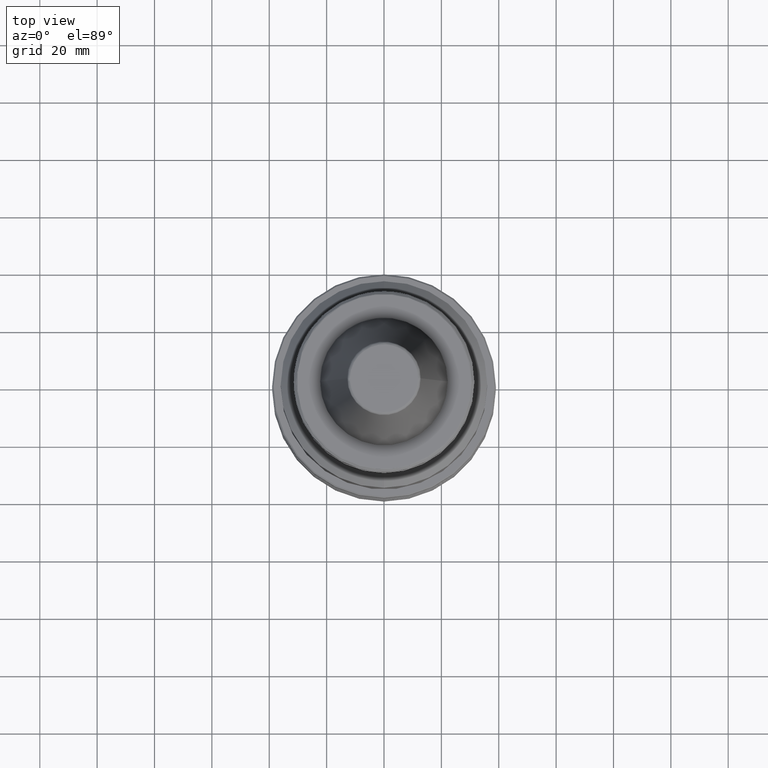
[diagram: clean part render]
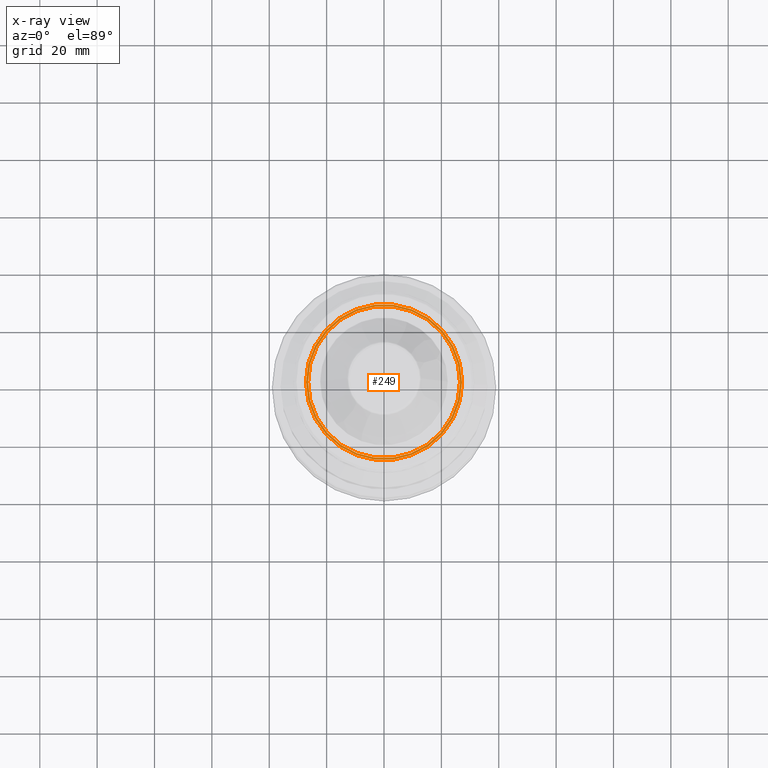
[diagram: x-ray — body ghosted, one internal face saturated and labeled with its STEP entity id]
A machine part, top view, then the same camera in x-ray: the body is ghosted and one INTERNAL B-rep face — a face not visible from any outside direction — is saturated and labeled: STEP entity #249.
In plain terms, the highlighted planar face has unit normal (0, 0, -1).
Its self-contained STEP definition (entity closure, byte-faithful):
#214 = AXIS2_PLACEMENT_3D ( 'NONE', #1846, #1793, #1953 ) ;
#249 = ADVANCED_FACE ( 'NONE', ( #1549, #2908 ), #1960, .T. ) ;
#311 = CARTESIAN_POINT ( 'NONE',  ( -27.19778137879260900, 3.594202504129474100E-015, -14.10000000087449700 ) ) ;
#401 = CARTESIAN_POINT ( 'NONE',  ( -26.50000000000000000, 3.245314017740485800E-015, -14.10000000000000100 ) ) ;
#416 = EDGE_CURVE ( 'NONE', #2725, #678, #2606, .T. ) ;
#467 = ORIENTED_EDGE ( 'NONE', *, *, #1849, .T. ) ;
#678 = VERTEX_POINT ( 'NONE', #1204 ) ;
#797 = CIRCLE ( 'NONE', #1053, 26.50000000000000000 ) ;
#804 = VERTEX_POINT ( 'NONE', #909 ) ;
#909 = CARTESIAN_POINT ( 'NONE',  ( 27.19778137879260900, 0.0000000000000000000, -14.10000000087449700 ) ) ;
#1053 = AXIS2_PLACEMENT_3D ( 'NONE', #2790, #2788, #2786 ) ;
#1067 = EDGE_LOOP ( 'NONE', ( #1435, #1792 ) ) ;
#1161 = AXIS2_PLACEMENT_3D ( 'NONE', #3037, #1839, #1841 ) ;
#1204 = CARTESIAN_POINT ( 'NONE',  ( 26.50000000000000000, 0.0000000000000000000, -14.10000000000000100 ) ) ;
#1265 = AXIS2_PLACEMENT_3D ( 'NONE', #2186, #2185, #2182 ) ;
#1435 = ORIENTED_EDGE ( 'NONE', *, *, #1471, .F. ) ;
#1471 = EDGE_CURVE ( 'NONE', #678, #2725, #797, .T. ) ;
#1504 = EDGE_LOOP ( 'NONE', ( #2388, #467 ) ) ;
#1549 = FACE_BOUND ( 'NONE', #1067, .T. ) ;
#1586 = CIRCLE ( 'NONE', #1265, 27.19778137879260900 ) ;
#1667 = CIRCLE ( 'NONE', #1794, 27.19778137879260900 ) ;
#1792 = ORIENTED_EDGE ( 'NONE', *, *, #416, .F. ) ;
#1793 = DIRECTION ( 'NONE',  ( 0.0000000000000000000, 0.0000000000000000000, -1.000000000000000000 ) ) ;
#1794 = AXIS2_PLACEMENT_3D ( 'NONE', #2463, #2623, #2620 ) ;
#1839 = DIRECTION ( 'NONE',  ( -0.0000000000000000000, -0.0000000000000000000, -1.000000000000000000 ) ) ;
#1841 = DIRECTION ( 'NONE',  ( 1.000000000000000000, 0.0000000000000000000, 0.0000000000000000000 ) ) ;
#1846 = CARTESIAN_POINT ( 'NONE',  ( -8.050000000000000700, -26.26108084499999900, -14.10000000000000000 ) ) ;
#1849 = EDGE_CURVE ( 'NONE', #2757, #804, #1667, .T. ) ;
#1953 = DIRECTION ( 'NONE',  ( -1.000000000000000000, 0.0000000000000000000, -0.0000000000000000000 ) ) ;
#1960 = PLANE ( 'NONE',  #214 ) ;
#2009 = EDGE_CURVE ( 'NONE', #804, #2757, #1586, .T. ) ;
#2182 = DIRECTION ( 'NONE',  ( -1.000000000000000000, 0.0000000000000000000, 0.0000000000000000000 ) ) ;
#2185 = DIRECTION ( 'NONE',  ( -0.0000000000000000000, -0.0000000000000000000, -1.000000000000000000 ) ) ;
#2186 = CARTESIAN_POINT ( 'NONE',  ( 0.0000000000000000000, 0.0000000000000000000, -14.10000000087449700 ) ) ;
#2388 = ORIENTED_EDGE ( 'NONE', *, *, #2009, .T. ) ;
#2463 = CARTESIAN_POINT ( 'NONE',  ( 0.0000000000000000000, 0.0000000000000000000, -14.10000000087449700 ) ) ;
#2606 = CIRCLE ( 'NONE', #1161, 26.50000000000000000 ) ;
#2620 = DIRECTION ( 'NONE',  ( -1.000000000000000000, 0.0000000000000000000, 0.0000000000000000000 ) ) ;
#2623 = DIRECTION ( 'NONE',  ( -0.0000000000000000000, -0.0000000000000000000, -1.000000000000000000 ) ) ;
#2725 = VERTEX_POINT ( 'NONE', #401 ) ;
#2757 = VERTEX_POINT ( 'NONE', #311 ) ;
#2786 = DIRECTION ( 'NONE',  ( 1.000000000000000000, 0.0000000000000000000, 0.0000000000000000000 ) ) ;
#2788 = DIRECTION ( 'NONE',  ( -0.0000000000000000000, -0.0000000000000000000, -1.000000000000000000 ) ) ;
#2790 = CARTESIAN_POINT ( 'NONE',  ( 0.0000000000000000000, 0.0000000000000000000, -14.10000000000000100 ) ) ;
#2908 = FACE_OUTER_BOUND ( 'NONE', #1504, .T. ) ;
#3037 = CARTESIAN_POINT ( 'NONE',  ( 0.0000000000000000000, 0.0000000000000000000, -14.10000000000000100 ) ) ;